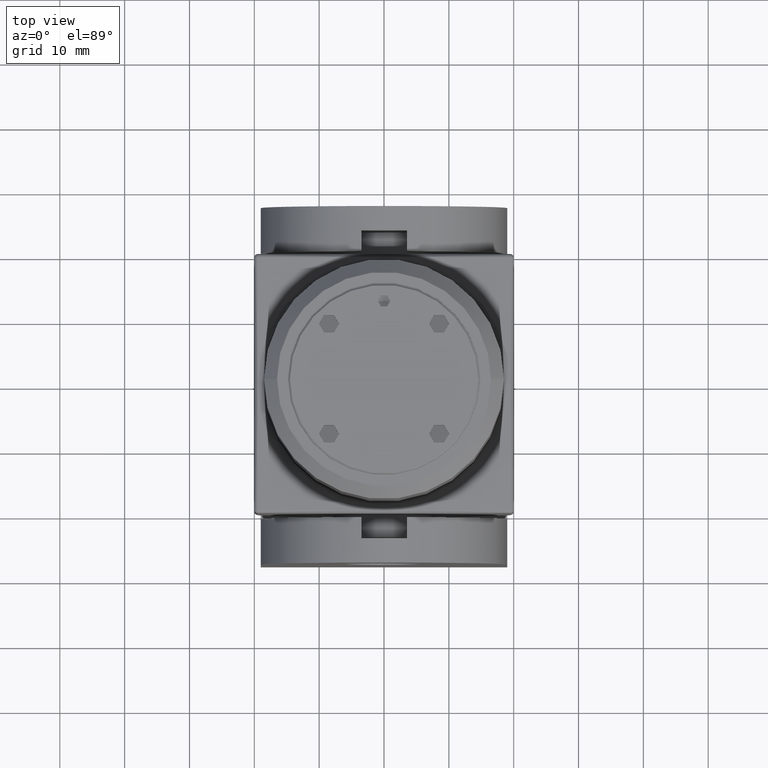
[diagram: clean part render]
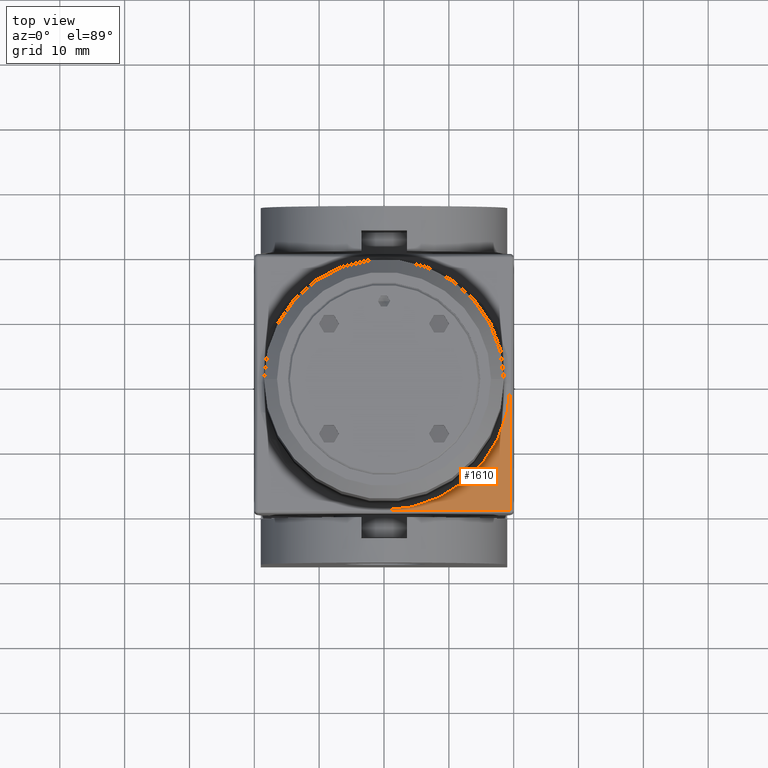
[diagram: same view with one face highlighted and labeled with its STEP entity id]
A machine part, top view. The second image highlights one B-rep face of the part: STEP entity #1610.
In plain terms, the highlighted planar face has unit normal (0, 0, -1).
Its self-contained STEP definition (entity closure, byte-faithful):
#112 = VERTEX_POINT ( 'NONE', #18693 ) ;
#746 = LINE ( 'NONE', #18675, #3960 ) ;
#1246 = CARTESIAN_POINT ( 'NONE',  ( 19.50000000000000000, 0.000000000000000000, 0.000000000000000000 ) ) ;
#1610 = ADVANCED_FACE ( 'NONE', ( #7804 ), #8999, .F. ) ;
#1739 = EDGE_CURVE ( 'NONE', #5087, #112, #4621, .T. ) ;
#2062 = VERTEX_POINT ( 'NONE', #1246 ) ;
#2654 = DIRECTION ( 'NONE',  ( -0.000000000000000000, 1.000000000000000000, -0.000000000000000000 ) ) ;
#3754 = ORIENTED_EDGE ( 'NONE', *, *, #9990, .T. ) ;
#3960 = VECTOR ( 'NONE', #2654, 1000.000000000000000 ) ;
#4621 = LINE ( 'NONE', #10191, #16739 ) ;
#5087 = VERTEX_POINT ( 'NONE', #13750 ) ;
#5762 = DIRECTION ( 'NONE',  ( -1.000000000000000000, 0.000000000000000000, -0.000000000000000000 ) ) ;
#7804 = FACE_OUTER_BOUND ( 'NONE', #10114, .T. ) ;
#8061 = CARTESIAN_POINT ( 'NONE',  ( 0.000000000000000000, 0.000000000000000000, 0.000000000000000000 ) ) ;
#8671 = EDGE_CURVE ( 'NONE', #112, #2062, #746, .T. ) ;
#8999 = PLANE ( 'NONE',  #14406 ) ;
#9876 = DIRECTION ( 'NONE',  ( -1.000000000000000000, 0.000000000000000000, 0.000000000000000000 ) ) ;
#9990 = EDGE_CURVE ( 'NONE', #2062, #5087, #15765, .T. ) ;
#10114 = EDGE_LOOP ( 'NONE', ( #3754, #15946, #14069 ) ) ;
#10191 = CARTESIAN_POINT ( 'NONE',  ( -20.00000000000000000, -19.50000000000000000, 0.000000000000000000 ) ) ;
#12787 = AXIS2_PLACEMENT_3D ( 'NONE', #8061, #14645, #9876 ) ;
#13750 = CARTESIAN_POINT ( 'NONE',  ( 0.000000000000000000, -19.50000000000000000, 0.000000000000000000 ) ) ;
#14069 = ORIENTED_EDGE ( 'NONE', *, *, #8671, .T. ) ;
#14406 = AXIS2_PLACEMENT_3D ( 'NONE', #18291, #15238, #5762 ) ;
#14645 = DIRECTION ( 'NONE',  ( 0.000000000000000000, 0.000000000000000000, -1.000000000000000000 ) ) ;
#15238 = DIRECTION ( 'NONE',  ( 0.000000000000000000, 0.000000000000000000, -1.000000000000000000 ) ) ;
#15765 = CIRCLE ( 'NONE', #12787, 19.50000000000000000 ) ;
#15946 = ORIENTED_EDGE ( 'NONE', *, *, #1739, .T. ) ;
#16739 = VECTOR ( 'NONE', #17876, 1000.000000000000000 ) ;
#17876 = DIRECTION ( 'NONE',  ( 1.000000000000000000, -0.000000000000000000, 0.000000000000000000 ) ) ;
#18291 = CARTESIAN_POINT ( 'NONE',  ( -20.00000000000000000, 20.00000000000000000, 0.000000000000000000 ) ) ;
#18675 = CARTESIAN_POINT ( 'NONE',  ( 19.50000000000000000, 20.00000000000000000, 0.000000000000000000 ) ) ;
#18693 = CARTESIAN_POINT ( 'NONE',  ( 19.50000000000000000, -19.50000000000000000, 0.000000000000000000 ) ) ;